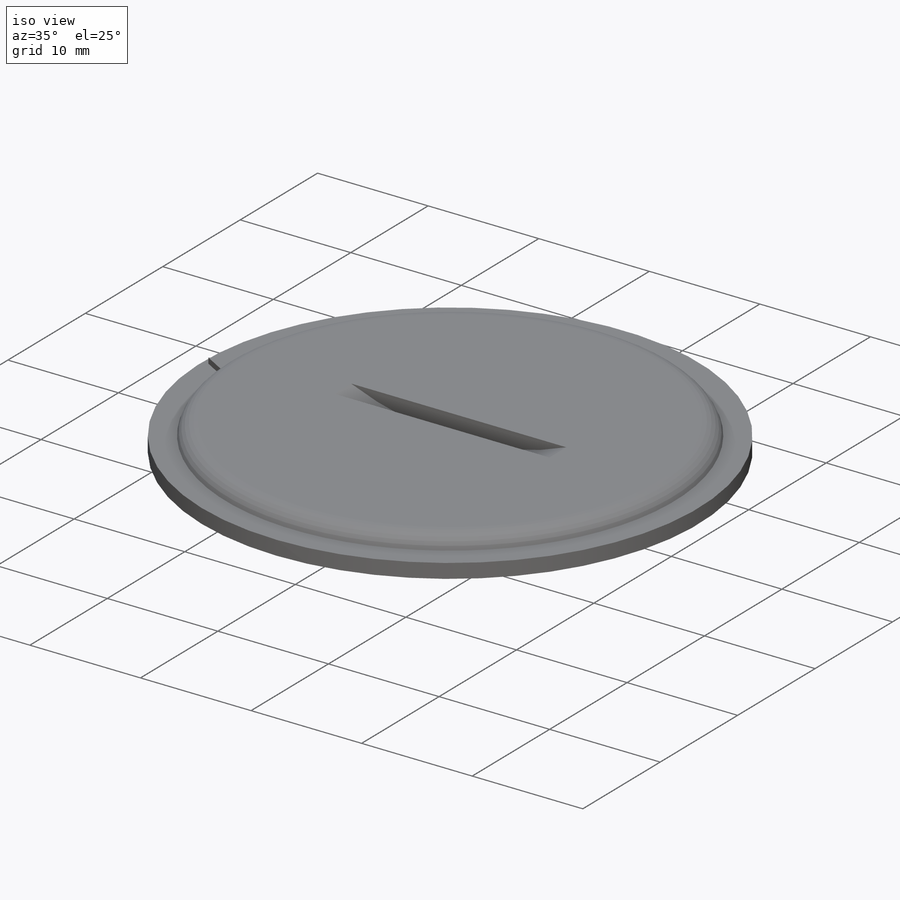
[diagram: iso view]
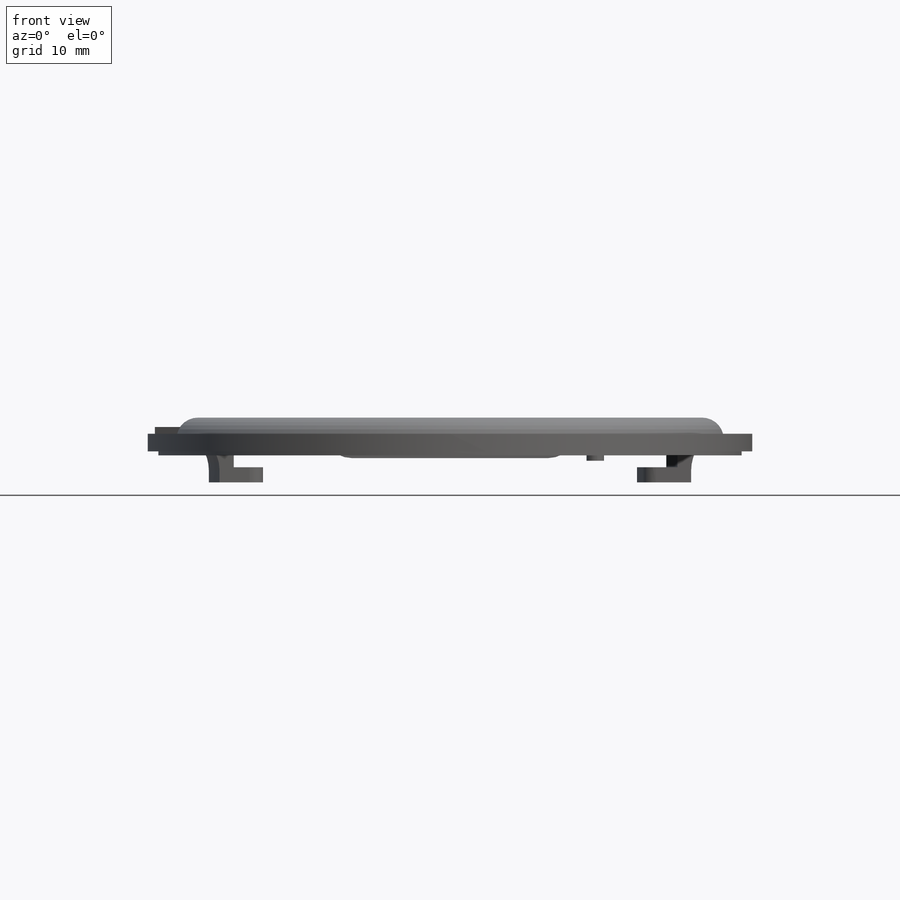
[diagram: front view]
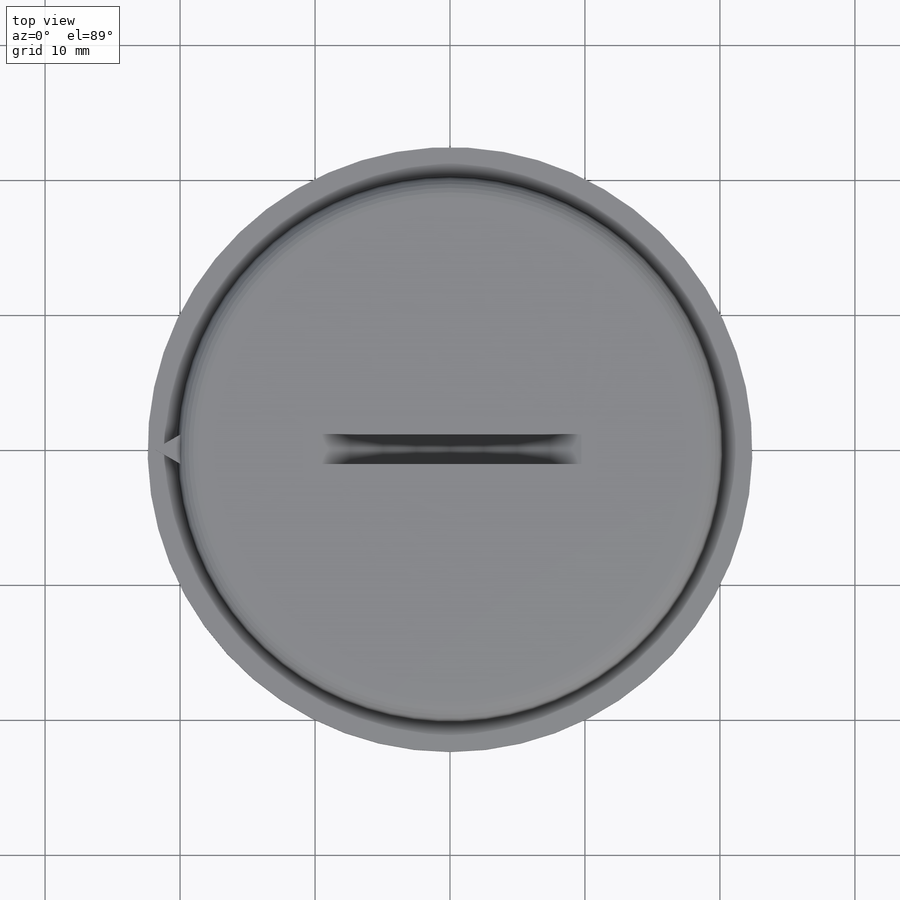
[diagram: top view]
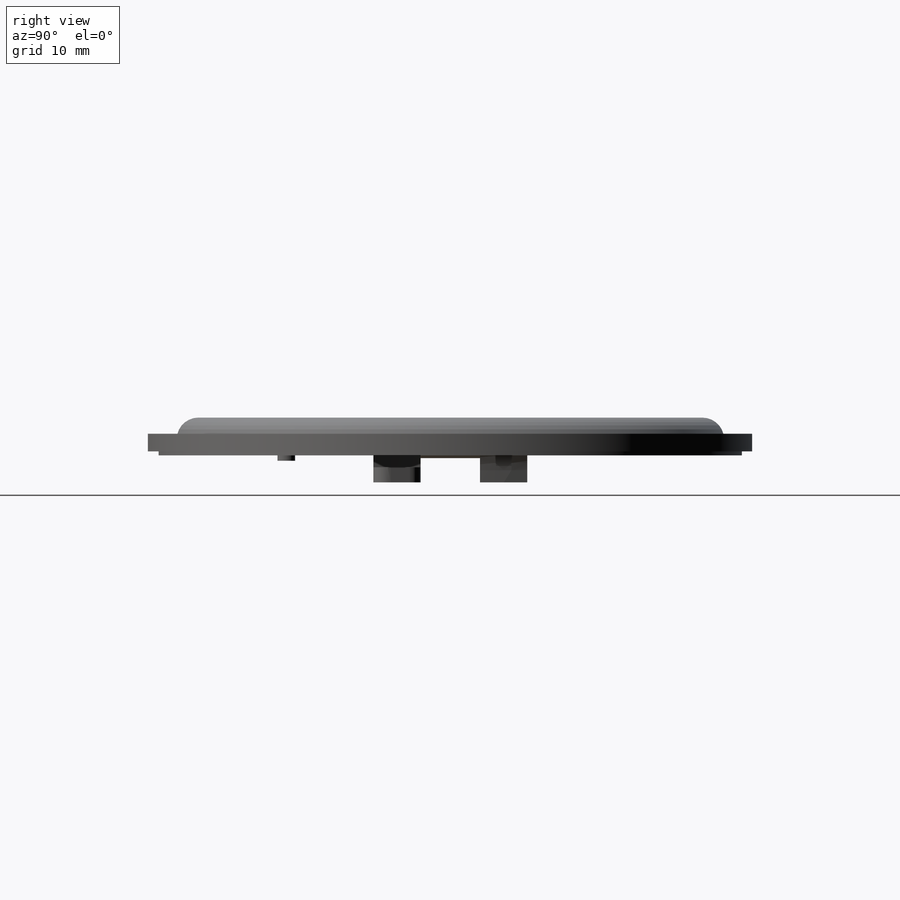
[diagram: right view]
SOLIDWORKS PART (.sldprt)
format: sldprt  version: not decoded by parser v0  size: 341,504 bytes
history: native  units: mm
features: sketch x11, extrude x8, fillet x4, cut_extrude x2, material x1, chamfer x1 (+11 scaffold rows collapsed)
feature tree (38):
  scaffold x11  (default folders/planes/origin — collapsed)
  material  "Material <not specified>"
  sketch  "Sketch1"
  sketch  "Sketch2"
  extrude  "Boss-Extrude1"  Depth=1.2mm
  fillet  "Fillet1"  Radius=1.6mm
  extrude  "Boss-Extrude2"  Depth=1.3mm
  sketch  "Sketch4"  dims[D1=0.0mm]
  extrude  "Boss-Extrude3"  Depth=0.5mm
  sketch  "Sketch5"
  sketch  "Sketch6"  dims[D1=19.4mm]
  cut_extrude  "Cut-Extrude1"  Depth=1.6mm
  fillet  "Fillet3"  Radius=1.6mm
  sketch  "Sketch7"
  extrude  "Boss-Extrude4"  Depth=0.3mm
  sketch  "Sketch8"
  extrude  "Boss-Extrude5"  Depth=2.1mm
  chamfer  "Chamfer1"  Distance=2.1mm
  fillet  "Fillet4"  Radius=2.1mm
  sketch  "Sketch9"
  extrude  "Boss-Extrude6"  Depth=2.3mm
  sketch  "Sketch11"  dims[D1=1.0mm]
  extrude  "Boss-Extrude8"  Depth=2.78mm
  sketch  "Sketch12"
  extrude  "Boss-Extrude9"  Depth=1.12mm
  fillet  "Fillet5"  Radius=3mm
  sketch  "Sketch13"
  cut_extrude  "Cut-Extrude2"  Depth=2.2mm
decode coverage: 18 of 26 modeling features carry decoded parameters
note: suppression state not decoded; provenance and decode notes live in map.json
